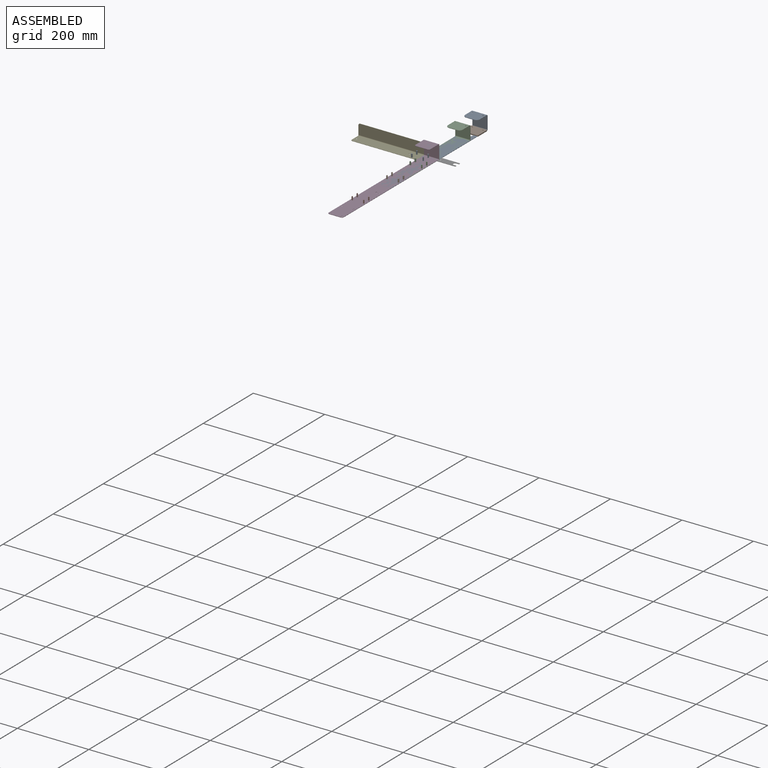
[diagram: assembled view]
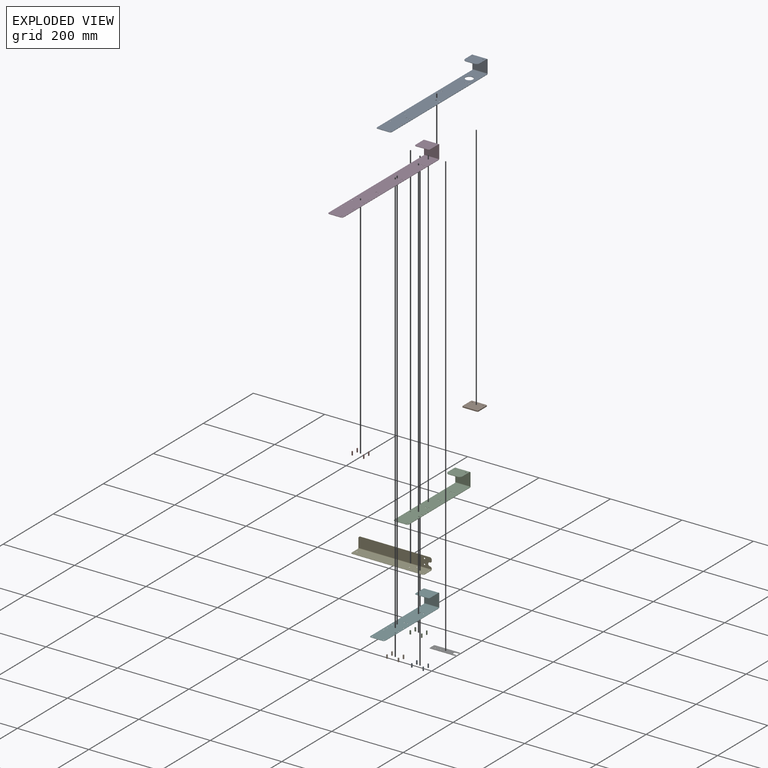
[diagram: exploded view]
GUIDED TOUR — FREECAD ASSEMBLY "pump_holder"

This assembly has 11 components, labeled P0..P10 below (a component is one placed body or linked part; the same part can appear more than once), held together by 0 modeled joints plus 27 derived contact edges. A joint is a constraint between two components; its type names the relative motion it leaves free:
  CONTACT — a derived adjacency edge — the two components touch in the source model (clearance under 2% of the assembly's diagonal); it is measured from the geometry, not a modeled constraint.
Axis/direction vectors are unit vectors and 'through' points are millimeter coordinates, both in the assembly's world frame.

MATES
  1. CONTACT "contact_0_1": P0 <-> P1, contact direction (0.000, 0.000, -1.000) through (-20.93, 190.30, 0.00) mm (derived from contact, not a modeled constraint)
  2. CONTACT "contact_0_2": P0 <-> P2, contact direction (0.000, 0.000, 1.000) through (18.25, 125.36, 1.38) mm (derived from contact, not a modeled constraint)
  3. CONTACT "contact_0_3": P0 <-> P3, contact direction (0.000, 0.000, -1.000) through (15.17, -141.60, 1.00) mm (derived from contact, not a modeled constraint)
  4. CONTACT "contact_0_4": P0 <-> P4, contact direction (0.000, 0.000, -1.000) through (2.25, 3.73, 1.64) mm (derived from contact, not a modeled constraint)
  5. CONTACT "contact_0_5": P0 <-> P5, contact direction (0.000, 0.000, -1.000) through (7.12, -107.50, 0.00) mm (derived from contact, not a modeled constraint)
  6. CONTACT "contact_0_6": P0 <-> P6, contact direction (0.000, 0.000, -1.000) through (3.75, 10.75, 0.00) mm (derived from contact, not a modeled constraint)
  7. CONTACT "contact_0_9": P0 <-> P9, contact direction (0.000, 0.000, -1.000) through (16.00, -139.25, 0.00) mm (derived from contact, not a modeled constraint)
  8. CONTACT "contact_2_3": P2 <-> P3, contact direction (0.000, 0.000, -1.000) through (15.64, -46.37, 1.00) mm (derived from contact, not a modeled constraint)
  9. CONTACT "contact_2_4": P2 <-> P4, contact direction (0.000, 0.000, -1.000) through (0.62, -26.50, 0.00) mm (derived from contact, not a modeled constraint)
  10. CONTACT "contact_2_5": P2 <-> P5, contact direction (0.000, 0.000, -1.000) through (12.00, -43.00, 0.00) mm (derived from contact, not a modeled constraint)
  11. CONTACT "contact_2_6": P2 <-> P6, contact direction (0.000, 0.000, -1.000) through (1.91, -15.98, 0.00) mm (derived from contact, not a modeled constraint)
  12. CONTACT "contact_2_8": P2 <-> P8, contact direction (0.000, 0.000, -1.000) through (-2.28, -26.29, 0.00) mm (derived from contact, not a modeled constraint)
  13. CONTACT "contact_2_9": P2 <-> P9, contact direction (0.000, -1.000, 0.000) through (16.00, -129.62, 0.00) mm (derived from contact, not a modeled constraint)
  14. CONTACT "contact_2_10": P2 <-> P10, contact direction (0.000, 0.000, -1.000) through (17.75, -63.00, 0.00) mm (derived from contact, not a modeled constraint)
  15. CONTACT "contact_3_4": P3 <-> P4, contact direction (0.000, 1.000, 0.000) through (-20.61, 0.00, 5.13) mm (derived from contact, not a modeled constraint)
  16. CONTACT "contact_3_5": P3 <-> P5, contact direction (0.000, 0.000, 1.000) through (21.00, -35.00, 40.00) mm (derived from contact, not a modeled constraint)
  17. CONTACT "contact_3_6": P3 <-> P6, contact direction (0.000, 0.000, -1.000) through (22.13, -0.30, 0.76) mm (derived from contact, not a modeled constraint)
  18. CONTACT "contact_3_7": P3 <-> P7, contact direction (0.000, 0.000, -1.000) through (-14.25, -275.00, 0.00) mm (derived from contact, not a modeled constraint)
  19. CONTACT "contact_3_9": P3 <-> P9, contact direction (0.000, 0.000, -1.000) through (15.54, -137.85, 0.00) mm (derived from contact, not a modeled constraint)
  20. CONTACT "contact_3_10": P3 <-> P10, contact direction (0.000, 0.000, -1.000) through (15.64, -46.37, 0.00) mm (derived from contact, not a modeled constraint)
  21. CONTACT "contact_4_5": P4 <-> P5, contact direction (0.000, -1.000, 0.000) through (-20.61, 0.00, 5.48) mm (derived from contact, not a modeled constraint)
  22. CONTACT "contact_4_6": P4 <-> P6, contact direction (0.000, 0.000, -1.000) through (0.00, -0.26, 0.91) mm (derived from contact, not a modeled constraint)
  23. CONTACT "contact_4_8": P4 <-> P8, contact direction (0.000, 0.000, -1.000) through (-38.31, -28.16, 0.00) mm (derived from contact, not a modeled constraint)
  24. CONTACT "contact_5_6": P5 <-> P6, contact direction (0.000, 0.000, -1.000) through (22.13, -0.43, 0.82) mm (derived from contact, not a modeled constraint)
  25. CONTACT "contact_5_9": P5 <-> P9, contact direction (0.000, 0.000, -1.000) through (-14.25, -136.00, 0.00) mm (derived from contact, not a modeled constraint)
  26. CONTACT "contact_5_10": P5 <-> P10, contact direction (0.000, 0.000, -1.000) through (12.00, -43.00, 0.00) mm (derived from contact, not a modeled constraint)
  27. CONTACT "contact_6_8": P6 <-> P8, contact direction (0.000, 0.000, 1.000) through (-1.62, -7.00, 0.00) mm (derived from contact, not a modeled constraint)

ASSEMBLY ORDER
  1. P3 — the base component [order heuristic]
  2. P9 [order verified]
  3. P0 [order verified]
  4. P5 — core [order heuristic]
  5. P4 [order verified]
  6. P10 [order verified]
  7. P2 [order verified]
  8. P8 [order verified]
  9. P7 [order verified]
  10. P1 [order verified]
  11. P6 [order verified]
Order-tag legend:
  [order verified] — this step's position reverses a verified removal order: the component was checked to insert without passing through the ones already placed.
  [order heuristic] — the first 2 components form the assembly's core: parts whose collision-free extraction could not be verified, listed in mate-graph order.

Of the 11 components, 7 carry a construction recipe — the FreeCAD feature program (sketches with constraints, then the solid features that consume them) that regenerates the part from scratch, quoted from this document or from the linked companion document it references; the rest are supplied as boundary geometry only. The tour below walks the components in assembly order: each is shown spotlighted twice — in the assembled view, then in the exploded view, where a leader line traces a displaced component back to its assembled socket (components that stay in place when exploded have no leader line; saturated green if recipe-attached, orange if geometry-only; every other component desaturated gray) — followed by its recipe or geometry summary and the mates that hold it.
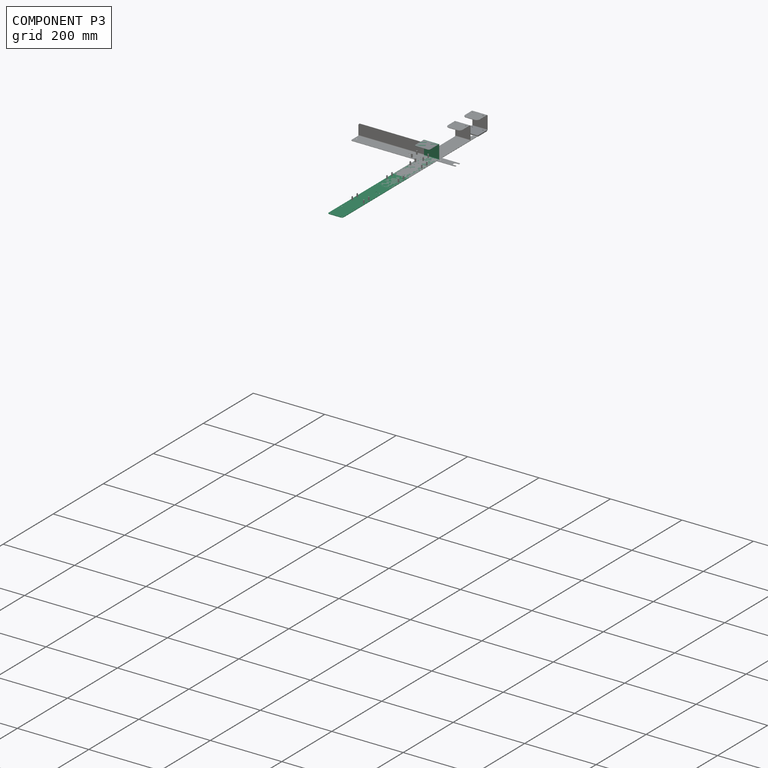
[diagram: component P3 — assembled]
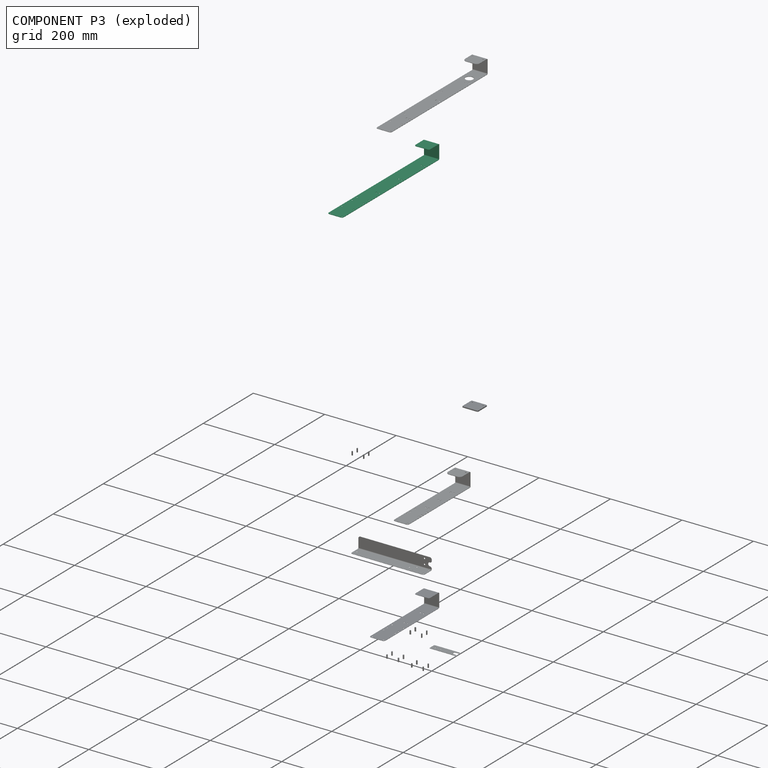
[diagram: component P3 — exploded]
COMPONENT P3 — recipe-attached ("Body", modeled in this document).
Held by: resting contact with P0 (derived edge); resting contact with P2 (derived edge); resting contact with P4 (derived edge); resting contact with P5 (derived edge); resting contact with P6 (derived edge); resting contact with P7 (derived edge); resting contact with P9 (derived edge); resting contact with P10 (derived edge).
Construction recipe (the document's own serialized feature program — sketch geometry with constraints, then the solid features built on it; lengths are millimeters unless a unit is written):

FEATURE [PartDesign::SubShapeBinder] Binder005
  BindCopyOnChange = 0
  BindMode = 0
  ClaimChildren = true
  Context = -> Body004 [Binder005.]
  Fuse = false
  MakeFace = true
  OffsetFill = false
  OffsetIntersection = false
  OffsetJoinType = 0
  OffsetOpenResult = false
  PartialLoad = false
  Placement = pos=(0,0,0) rot=(0,-1,0;1.5708rad)
  Relative = true
  Support = -> [Sketch016]
  _Version = 2
FEATURE [PartDesign::FeaturePython] BaseBend002  # WARN: FeaturePython — macro-defined, semantics opaque (R4)
  BendSide = 1
  BendSketch = -> Binder005
  MidPlane = true
  Reverse = false
  Suppressed = false
  length = 42
  radius = 1
  thickness = 1
FEATURE [PartDesign::Boolean] Boolean
  BaseFeature = -> BaseBend002
  Group = -> [Compound003]
  Suppressed = false
  Type = 1
  UsePlacement = true
FEATURE [PartDesign::Body] Body004  label="Body"
  Group = -> [Binder005,BaseBend002,Boolean]
  Origin = -> Origin004
  Tip = -> Boolean
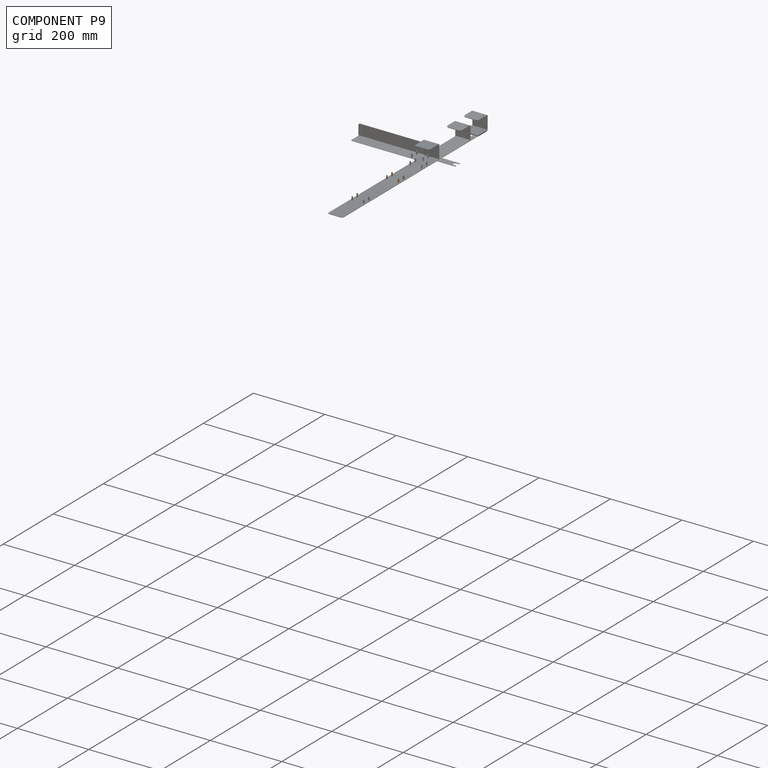
[diagram: component P9 — assembled]
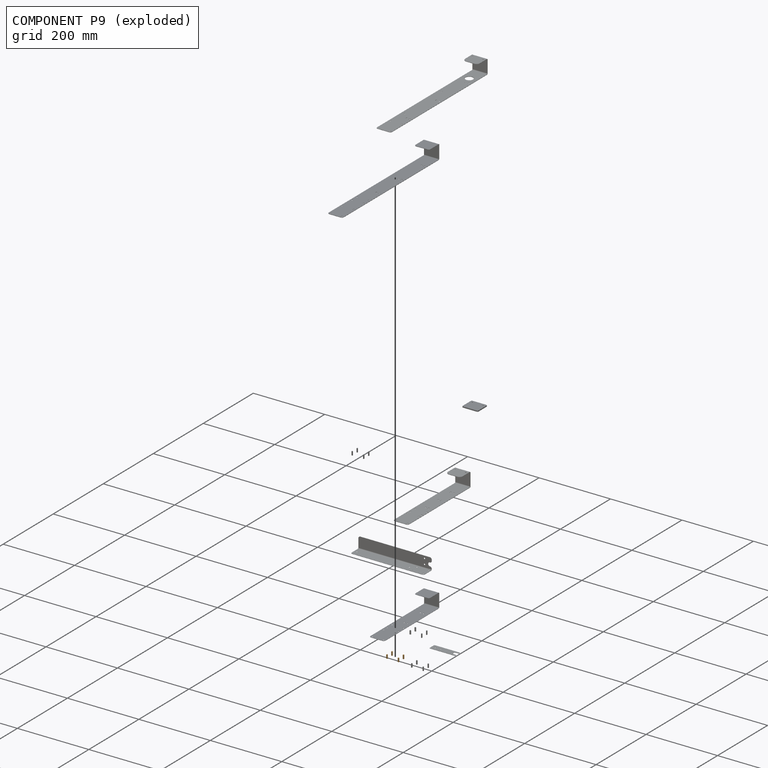
[diagram: component P9 — exploded]
COMPONENT P9 — geometry summary ("Populate Populate LinearArray003 with LinearArray001 with hole_3.5_mm003"; no construction recipe available for this part):
  bounding box: 35.5 x 23.5 x 10.0 mm
  tessellated surface: 816 triangles
  volume: 385 mm^3 (5% of its bounding box)
  symmetry: 2-fold rotationally symmetric about the x axis
Held by: resting contact with P0 (derived edge); resting contact with P2 (derived edge); resting contact with P3 (derived edge); resting contact with P5 (derived edge).
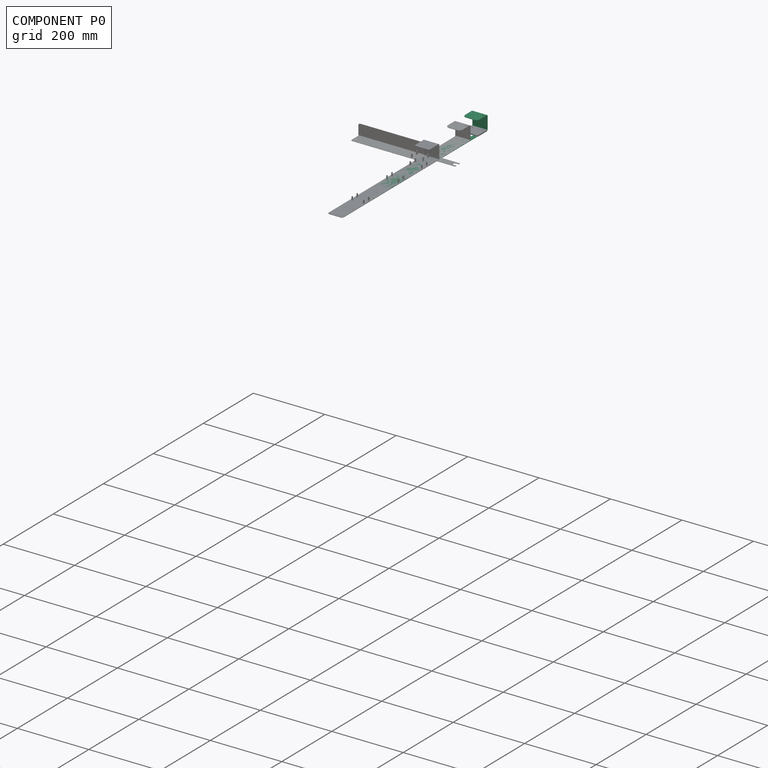
[diagram: component P0 — assembled]
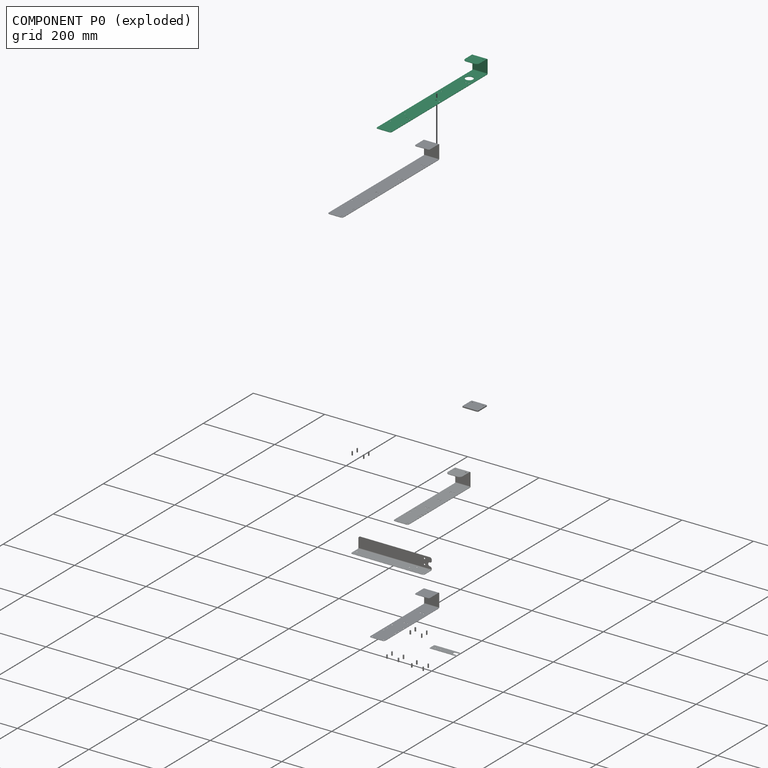
[diagram: component P0 — exploded]
COMPONENT P0 — recipe-attached ("pump_holder_full_size_material_0.45ansi", modeled in this document).
Held by: resting contact with P1 (derived edge); resting contact with P2 (derived edge); resting contact with P3 (derived edge); resting contact with P4 (derived edge); resting contact with P5 (derived edge); resting contact with P6 (derived edge); resting contact with P9 (derived edge).
Construction recipe (the document's own serialized feature program — sketch geometry with constraints, then the solid features built on it; lengths are millimeters unless a unit is written):

FEATURE [Sketcher::SketchObject] Sketch
  AttachmentSupport = -> [YZ_Plane]
  FullyConstrained = true
  MapMode = 5
  Placement = pos=(0,0,0) rot=(0.57735,0.57735,0.57735;2.0944rad)
  sketch-geometry (3):
    g0: LineSegment StartX=-193.5 StartY=0 StartZ=0 EndX=193.5 EndY=0 EndZ=0
    g1: LineSegment StartX=193.5 StartY=0 StartZ=0 EndX=193.5 EndY=40 EndZ=0
    g2: LineSegment StartX=193.5 StartY=40 StartZ=0 EndX=153.5 EndY=40 EndZ=0
  constraints (9):
    c: PointOnObject(g0,g-1)
    c: Coincident(g1,g0)
    c: Vertical(g1)
    c: Coincident(g2,g1)
    c: Horizontal(g2)
    c: DistanceY(g1,g1) = 40
    c: DistanceX(g2,g2) = 40
    c: Symmetric(g0,g0,g-2)
    c: DistanceX(g0,g0) = 387  'length'
FEATURE [PartDesign::FeaturePython] BaseBend  # WARN: FeaturePython — macro-defined, semantics opaque (R4)
  BendSide = 1
  BendSketch = -> Sketch
  MidPlane = true
  Reverse = false
  Suppressed = false
  length = 42
  radius = 2
  thickness = 1
FEATURE [Sketcher::SketchObject] Sketch002
  AttachmentOffset = pos=(0,-105.5,0) rot=(0,0,1;0rad)
  AttachmentSupport = -> [XY_Plane]
  FullyConstrained = true
  MapMode = 5
  Placement = pos=(0,-105.5,0) rot=(0,0,1;0rad)
  expr: AttachmentOffset = Binder.Placement
  sketch-geometry (1):
    g0: Circle CenterX=0 CenterY=0 CenterZ=0 NormalX=0 NormalY=0 NormalZ=1 AngleXU=0 Radius=5
  constraints (2):
    c: Coincident(g0,g-1)
    c: Diameter(g0) = 10
FEATURE [PartDesign::SubShapeBinder] Binder
  BindCopyOnChange = 0
  BindMode = 0
  ClaimChildren = true
  Context = -> Body [Binder.]
  Fuse = false
  MakeFace = true
  OffsetFill = false
  OffsetIntersection = false
  OffsetJoinType = 0
  OffsetOpenResult = false
  PartialLoad = false
  Placement = pos=(0,-105.5,0) rot=(0,0,1;0rad)
  Relative = false
  Support = -> [Compound]
  _Version = 2
  expr: .Placement.Base.y = Local_CS.Placement.Base.y + Sketch003.Constraints.length + 70 mm
FEATURE [Sketcher::SketchObject] Sketch004
  AttachmentOffset = pos=(10,75,0) rot=(0,0,1;0rad)
  AttachmentSupport = -> [Binder]
  FullyConstrained = true
  MapMode = 5
  Placement = pos=(10,-30.5,0) rot=(0,0,1;0rad)
  expr: .AttachmentOffset.Base.y = 75 mm
  sketch-geometry (2):
    g0: Circle CenterX=5 CenterY=0 CenterZ=0 NormalX=0 NormalY=0 NormalZ=1 AngleXU=0 Radius=2
    g1: Circle CenterX=-5 CenterY=0 CenterZ=0 NormalX=0 NormalY=0 NormalZ=1 AngleXU=0 Radius=2
  constraints (5):
    c: PointOnObject(g0,g-1)
    c: Equal(g1,g0)
    c: Diameter(g1) = 4
    c: Symmetric(g1,g0,g-2)
    c: DistanceX(g1,g0) = 10
FEATURE [Sketcher::SketchObject] Sketch005
  AttachmentOffset = pos=(0,183.5,2) rot=(0,0,1;0rad)
  AttachmentSupport = -> [XY_Plane]
  FullyConstrained = true
  MapMode = 5
  Placement = pos=(0,183.5,2) rot=(0,0,1;0rad)
  expr: .AttachmentOffset.Base.y = Sketch.Constraints.length / 2 - 10 mm
  expr: .AttachmentOffset.Base.z = BaseBend.thickness + 1 mm
  sketch-geometry (2):
    g0: Circle CenterX=15 CenterY=0 CenterZ=0 NormalX=0 NormalY=0 NormalZ=1 AngleXU=0 Radius=1.65
    g1: Circle CenterX=-15 CenterY=0 CenterZ=0 NormalX=0 NormalY=0 NormalZ=1 AngleXU=0 Radius=1.65
  constraints (5):
    c: PointOnObject(g0,g-1)
    c: Equal(g1,g0)
    c: Diameter(g1) = 3.3
    c: Symmetric(g0,g1,g-2)
    c: DistanceX(g1,g0) = 30
FEATURE [PartDesign::Fillet] Fillet
  Base = -> BaseBend [Edge8,Edge10]
  BaseFeature = -> BaseBend
  Radius = 10
  SupportTransform = false
  Suppressed = false
  UseAllEdges = false
FEATURE [PartDesign::Fillet] Fillet001
  Base = -> Fillet [Edge48,Edge47]
  BaseFeature = -> Fillet
  Radius = 5
  SupportTransform = false
  Suppressed = false
  UseAllEdges = false
FEATURE [Sketcher::SketchObject] Sketch014
  AttachmentOffset = pos=(0,150,0) rot=(0,0,1;0rad)
  AttachmentSupport = -> [XY_Plane]
  FullyConstrained = true
  MapMode = 5
  Placement = pos=(0,150,0) rot=(0,0,1;0rad)
  sketch-geometry (1):
    g0: Circle CenterX=0 CenterY=0 CenterZ=0 NormalX=0 NormalY=0 NormalZ=1 AngleXU=0 Radius=10.5
  constraints (2):
    c: Coincident(g0,g-1)
    c: Diameter(g0) = 21
FEATURE [PartDesign::CoordinateSystem] Local_CS002
  AttacherType = Attacher::AttachEngine3D
  AttachmentOffset = pos=(0,-193.5,0) rot=(0,0,1;0rad)
  AttachmentSupport = -> [XY_Plane]
  MapMode = 5
  Placement = pos=(0,-193.5,0) rot=(0,0,1;0rad)
  expr: .AttachmentOffset.Base.y = -Sketch.Constraints.length / 2
FEATURE [Sketcher::SketchObject] Sketch001
  AttachmentOffset = pos=(0,28,0) rot=(0,0,1;0rad)
  AttachmentSupport = -> [Local_CS002]
  FullyConstrained = true
  MapMode = 5
  Placement = pos=(0,-165.5,0) rot=(0,0,1;0rad)
  expr: .AttachmentOffset.Base.y = .Constraints.y_distance / 2 + 5 mm
  sketch-geometry (9):
    g0: LineSegment StartX=-16 StartY=-23 StartZ=0 EndX=-16 EndY=23 EndZ=0
    g1: LineSegment StartX=-16 StartY=23 StartZ=0 EndX=16 EndY=23 EndZ=0
    g2: LineSegment StartX=16 StartY=23 StartZ=0 EndX=16 EndY=-23 EndZ=0
    g3: LineSegment StartX=16 StartY=-23 StartZ=0 EndX=-16 EndY=-23 EndZ=0
    g4: GeomPoint X=0 Y=0 Z=0
    g5: Circle CenterX=-16 CenterY=23 CenterZ=0 NormalX=0 NormalY=0 NormalZ=1 AngleXU=0 Radius=1.75
    g6: Circle CenterX=16 CenterY=23 CenterZ=0 NormalX=0 NormalY=0 NormalZ=1 AngleXU=0 Radius=1.75
    g7: Circle CenterX=16 CenterY=-23 CenterZ=0 NormalX=0 NormalY=0 NormalZ=1 AngleXU=0 Radius=1.75
    g8: Circle CenterX=-16 CenterY=-23 CenterZ=0 NormalX=0 NormalY=0 NormalZ=1 AngleXU=0 Radius=1.75
  constraints (20):
    c: Coincident(g0,g1)
    c: Coincident(g1,g2)
    c: Coincident(g2,g3)
    c: Coincident(g3,g0)
    c: Horizontal(g1)
    c: Horizontal(g3)
    c: Vertical(g0)
    c: Vertical(g2)
    c: Symmetric(g1,g0,g4)
    c: Coincident(g4,g-1)
    c: DistanceY(g2,g2) = 46  'y_distance'
    c: DistanceX(g1,g1) = 32  'x_distance'
    c: Coincident(g5,g0)
    c: Coincident(g6,g1)
    c: Coincident(g7,g2)
    c: Coincident(g8,g0)
    c: Equal(g7,g8)
    c: Equal(g7,g5)
    c: Equal(g7,g6)
    c: Diameter(g7) = 3.5
FEATURE [PartDesign::Hole] Hole
  BaseFeature = -> Fillet001
  CustomThreadClearance = 0
  Depth = 756.527
  DepthType = 1
  Diameter = 3.5
  DrillForDepth = false
  DrillPoint = 1
  DrillPointAngle = 118
  HoleCutCountersinkAngle = 90
  HoleCutCustomValues = false
  HoleCutDepth = 0
  HoleCutDiameter = 6.1
  HoleCutType = 0
  ModelThread = false
  Profile = -> Sketch001
  Reversed = true
  Suppressed = false
  Tapered = false
  TaperedAngle = 90
  ThreadClass = 0
  ThreadDepth = 756.527
  ThreadDepthType = 0
  ThreadDirection = 0
  ThreadFit = 0
  ThreadSize = 0
  ThreadType = 0
  Threaded = false
  UseCustomThreadClearance = false
  expr: Diameter = 3.5
FEATURE [PartDesign::CoordinateSystem] Local_CS
  AttacherType = Attacher::AttachEngine3D
  AttachmentOffset = pos=(-12,0,0) rot=(0,0,1;0rad)
  AttachmentSupport = -> [Local_CS002]
  MapMode = 5
  Placement = pos=(-12,-193.5,0) rot=(0,0,1;0rad)
FEATURE [PartDesign::Hole] Hole003
  BaseFeature = -> Hole
  CustomThreadClearance = 0
  Depth = 1070.26
  DepthType = 1
  Diameter = 3.3
  DrillForDepth = false
  DrillPoint = 1
  DrillPointAngle = 118
  HoleCutCountersinkAngle = 90
  HoleCutCustomValues = false
  HoleCutDepth = 0
  HoleCutDiameter = 6.1
  HoleCutType = 0
  ModelThread = false
  Profile = -> Sketch005
  Reversed = true
  Suppressed = false
  Tapered = false
  TaperedAngle = 90
  ThreadClass = 0
  ThreadDepth = 1070.26
  ThreadDepthType = 0
  ThreadDirection = 0
  ThreadFit = 0
  ThreadSize = 0
  ThreadType = 0
  Threaded = false
  UseCustomThreadClearance = false
  expr: Diameter = 3.3
FEATURE [Sketcher::SketchObject] Sketch013
  AttachmentOffset = pos=(0,102.5,0) rot=(0,0,1;0rad)
  AttachmentSupport = -> [Local_CS]
  FullyConstrained = true
  MapMode = 5
  Placement = pos=(-12,-91,0) rot=(0,0,1;0rad)
  sketch-geometry (2):
    g0: Circle CenterX=0 CenterY=0 CenterZ=0 NormalX=0 NormalY=0 NormalZ=1 AngleXU=0 Radius=1.65
    g1: Circle CenterX=0 CenterY=147 CenterZ=0 NormalX=0 NormalY=0 NormalZ=1 AngleXU=0 Radius=1.65
  constraints (5):
    c: Coincident(g0,g-1)
    c: PointOnObject(g1,g-2)
    c: DistanceY(g1) = 147
    c: Equal(g0,g1)
    c: Diameter(g0) = 3.3
FEATURE [PartDesign::Pocket] Pocket001
  BaseFeature = -> Hole003
  Direction = (0,0,-1)
  Length = 5
  Length2 = 5
  Midplane = true
  Profile = -> Sketch013
  ReferenceAxis = -> Sketch013 [N_Axis]
  Suppressed = false
  Type = 1
FEATURE [PartDesign::Pocket] Pocket002
  BaseFeature = -> Pocket001
  Direction = (0,0,-1)
  Length = 5
  Length2 = 5
  Profile = -> Sketch014
  ReferenceAxis = -> Sketch014 [N_Axis]
  Reversed = true
  Suppressed = false
  Type = 0
FEATURE [PartDesign::SubShapeBinder] Binder004
  BindCopyOnChange = 0
  BindMode = 0
  ClaimChildren = false
  Context = -> Body [Binder004.]
  Fuse = false
  MakeFace = true
  OffsetFill = false
  OffsetIntersection = false
  OffsetJoinType = 0
  OffsetOpenResult = false
  PartialLoad = false
  Relative = true
  Support = -> [Populate]
  _Version = 2
FEATURE [PartDesign::Pocket] Pocket003
  BaseFeature = -> Pocket002
  Direction = (0,0,-1)
  Length = 5
  Length2 = 5
  Profile = -> Binder004
  Reversed = true
  Suppressed = false
  Type = 0
FEATURE [PartDesign::Body] Body  label="pump_holder_full_size_material_0.45ansi"
  Group = -> [Sketch,BaseBend,Sketch001,Fillet,Fillet001,Hole,Sketch002,Binder,Sketch004,Local_CS,Sketch005,Hole003,Sketch013,Pocket001,Sketch014,Pocket002,Local_CS002,Binder004,Pocket003]
  Origin = -> Origin
  Tip = -> Pocket003
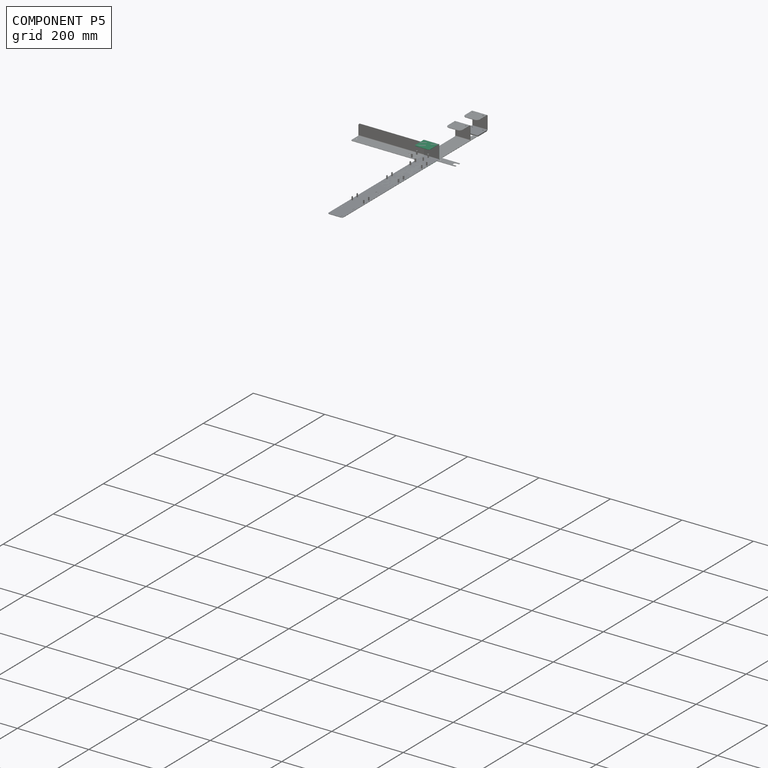
[diagram: component P5 — assembled]
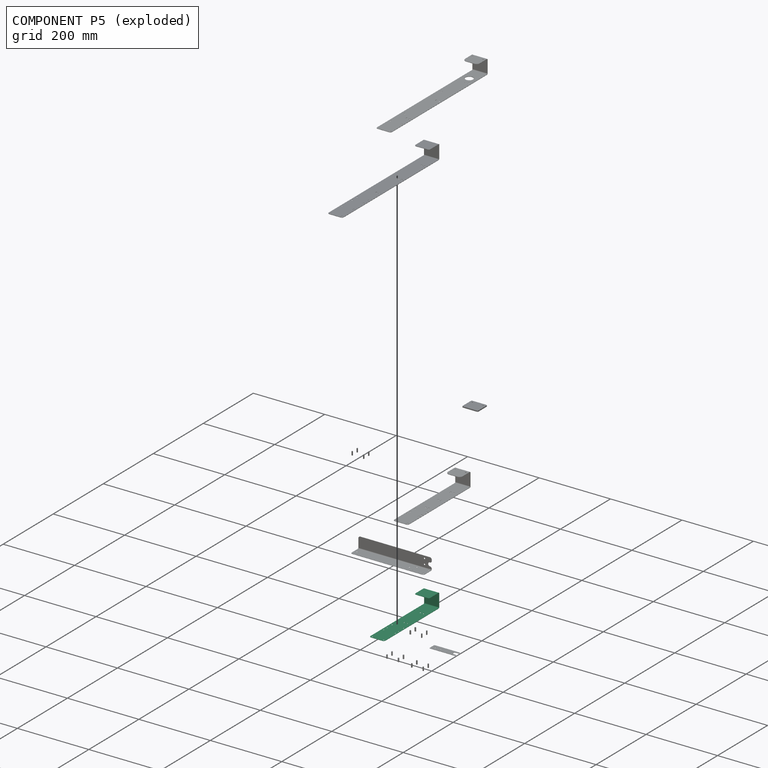
[diagram: component P5 — exploded]
COMPONENT P5 — recipe-attached ("Body006", modeled in this document).
Held by: resting contact with P0 (derived edge); resting contact with P2 (derived edge); resting contact with P3 (derived edge); resting contact with P4 (derived edge); resting contact with P6 (derived edge); resting contact with P9 (derived edge); resting contact with P10 (derived edge).
Construction recipe (the document's own serialized feature program — sketch geometry with constraints, then the solid features built on it; lengths are millimeters unless a unit is written):

FEATURE [PartDesign::SubShapeBinder] Binder007
  BindCopyOnChange = 0
  BindMode = 0
  ClaimChildren = true
  Context = -> Body006 [Binder007.]
  Fuse = false
  MakeFace = true
  OffsetFill = false
  OffsetIntersection = false
  OffsetJoinType = 0
  OffsetOpenResult = false
  PartialLoad = false
  Placement = pos=(0,0,0) rot=(0,-1,0;1.5708rad)
  Relative = false
  Support = -> [Sketch021]
  _Version = 2
FEATURE [PartDesign::FeaturePython] BaseBend004  # WARN: FeaturePython — macro-defined, semantics opaque (R4)
  BendSide = 1
  BendSketch = -> Binder007
  MidPlane = true
  Reverse = false
  Suppressed = false
  length = 42
  radius = 2
  thickness = 0.7
FEATURE [PartDesign::Boolean] Boolean002
  BaseFeature = -> BaseBend004
  Group = -> [Compound005]
  Suppressed = false
  Type = 1
  UsePlacement = true
FEATURE [PartDesign::Body] Body006
  Group = -> [Binder007,BaseBend004,Boolean002]
  Origin = -> Origin006
  Tip = -> Boolean002
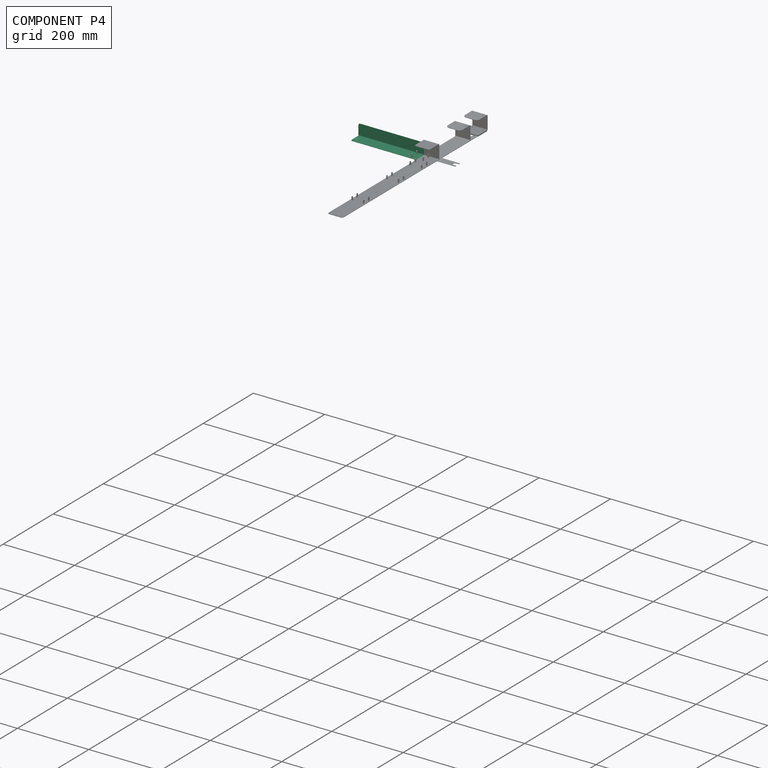
[diagram: component P4 — assembled]
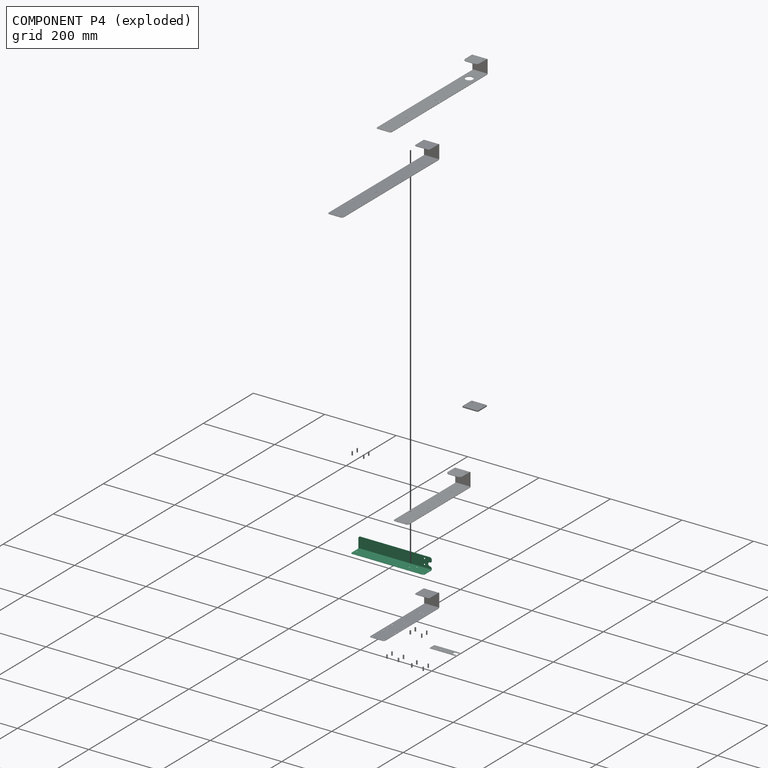
[diagram: component P4 — exploded]
COMPONENT P4 — recipe-attached ("Body005", modeled in this document).
Held by: resting contact with P0 (derived edge); resting contact with P2 (derived edge); resting contact with P3 (derived edge); resting contact with P5 (derived edge); resting contact with P6 (derived edge); resting contact with P8 (derived edge).
Construction recipe (the document's own serialized feature program — sketch geometry with constraints, then the solid features built on it; lengths are millimeters unless a unit is written):

FEATURE [PartDesign::SubShapeBinder] Binder006
  BindCopyOnChange = 0
  BindMode = 0
  ClaimChildren = true
  Context = -> Body005 [Binder006.]
  Fuse = false
  MakeFace = true
  OffsetFill = false
  OffsetIntersection = false
  OffsetJoinType = 0
  OffsetOpenResult = false
  PartialLoad = false
  Placement = pos=(0,0,0) rot=(0,-1,0;1.5708rad)
  Relative = false
  Support = -> [Sketch018]
  _Version = 2
FEATURE [PartDesign::FeaturePython] BaseBend003  # WARN: FeaturePython — macro-defined, semantics opaque (R4)
  BendSide = 0
  BendSketch = -> Binder006
  MidPlane = false
  Reverse = false
  Suppressed = false
  length = 205
  radius = 2
  thickness = 0.7
FEATURE [Sketcher::SketchObject] Sketch019
  AttachmentSupport = -> [XZ_Plane005]
  FullyConstrained = true
  MapMode = 5
  Placement = pos=(0,0,0) rot=(1,0,0;1.5708rad)
  sketch-geometry (5):
    g0: ArcOfCircle CenterX=-4.99997 CenterY=4 CenterZ=0 NormalX=0 NormalY=0 NormalZ=1 AngleXU=0 Radius=4.99997 StartAngle=0 EndAngle=1.5708
    g1: ArcOfCircle CenterX=-5 CenterY=14 CenterZ=0 NormalX=0 NormalY=0 NormalZ=1 AngleXU=0 Radius=5 StartAngle=1.45946 EndAngle=4.71239
    g2: ArcOfCircle CenterX=-4 CenterY=22.9442 CenterZ=0 NormalX=0 NormalY=0 NormalZ=1 AngleXU=0 Radius=4 StartAngle=4.60105 EndAngle=6.28319
    g3: LineSegment StartX=0 StartY=4 StartZ=0 EndX=0 EndY=22.9442 EndZ=0
    g4: LineSegment StartX=-4.99999 StartY=8.99997 StartZ=0 EndX=0 EndY=8.99997 EndZ=0
  constraints (14):
    c: PointOnObject(g2,g-2)
    c: Tangent(g3,g0) = -1.5708
    c: Vertical(g3)
    c: Tangent(g3,g2) = -1.5708
    c: Tangent(g1,g0) = 1.5708
    c: Tangent(g2,g1) = 1.5708
    c: Radius(g2) = 4
    c: Tangent(g1,g3)
    c: Diameter(g1) = 10
    c: Coincident(g4,g0)
    c: PointOnObject(g4,g3)
    c: Horizontal(g4)
    c: Tangent(g4,g1)
    c: DistanceY(g0) = 4
FEATURE [Sketcher::SketchObject] Sketch022
  AttachmentSupport = -> [XZ_Plane005]
  ExternalGeometry = -> [Binder006]
  FullyConstrained = true
  MapMode = 5
  Placement = pos=(0,0,0) rot=(1,0,0;1.5708rad)
  sketch-geometry (7):
    g0: LineSegment StartX=-50 StartY=32 StartZ=0 EndX=-10 EndY=32 EndZ=0
    g1: ArcOfCircle CenterX=-50 CenterY=42 CenterZ=0 NormalX=0 NormalY=0 NormalZ=1 AngleXU=0 Radius=10 StartAngle=4.71239 EndAngle=6.28319
    g2: ArcOfCircle CenterX=-10 CenterY=42 CenterZ=0 NormalX=0 NormalY=0 NormalZ=1 AngleXU=0 Radius=10 StartAngle=3.14159 EndAngle=4.71239
    g3: Circle CenterX=-30 CenterY=42 CenterZ=0 NormalX=0 NormalY=0 NormalZ=1 AngleXU=0 Radius=5
    g4: ArcOfCircle CenterX=-30 CenterY=42 CenterZ=0 NormalX=0 NormalY=0 NormalZ=1 AngleXU=0 Radius=10 StartAngle=2.84e-14 EndAngle=3.14159
    g5: LineSegment StartX=-50 StartY=32 StartZ=0 EndX=-30 EndY=42 EndZ=0
    g6: LineSegment StartX=-30 StartY=42 StartZ=0 EndX=-10 EndY=32 EndZ=0
  constraints (18):
    c: Horizontal(g0)
    c: Coincident(g1,g0)
    c: Coincident(g4,g3)
    c: Horizontal(g0,g-3)
    c: DistanceX(g0) = -10
    c: Tangent(g4,g2) = 1.5708
    c: Tangent(g4,g1) = 1.5708
    c: Equal(g2,g1)
    c: Equal(g2,g4)
    c: Coincident(g0,g5)
    c: Coincident(g5,g3)
    c: Coincident(g5,g6)
    c: Coincident(g6,g0)
    c: Equal(g5,g6)
    c: Diameter(g3) = 10
    c: Distance(g3,g4) = 5
    c: DistanceY(g0,g3) = 10
    c: Tangent(g2,g0) = -1.5708
FEATURE [PartDesign::Boolean] Boolean001
  BaseFeature = -> BaseBend003
  Group = -> [Compound004]
  Suppressed = false
  Type = 1
  UsePlacement = true
FEATURE [PartDesign::Pocket] Pocket004
  BaseFeature = -> Boolean001
  Direction = (0,1,-2e-16)
  Length = 5
  Length2 = 5
  Midplane = true
  Profile = -> Sketch019
  ReferenceAxis = -> Sketch019 [N_Axis]
  Suppressed = false
  Type = 0
FEATURE [PartDesign::Body] Body005
  Group = -> [Binder006,BaseBend003,Boolean001,Sketch019,Pocket004,Sketch022]
  Origin = -> Origin005
  Tip = -> Pocket004
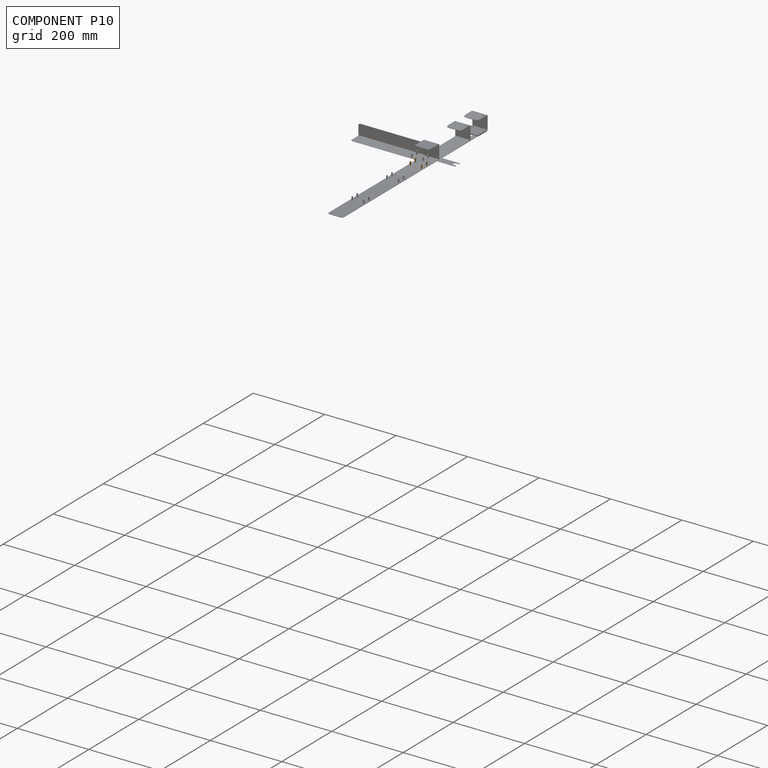
[diagram: component P10 — assembled]
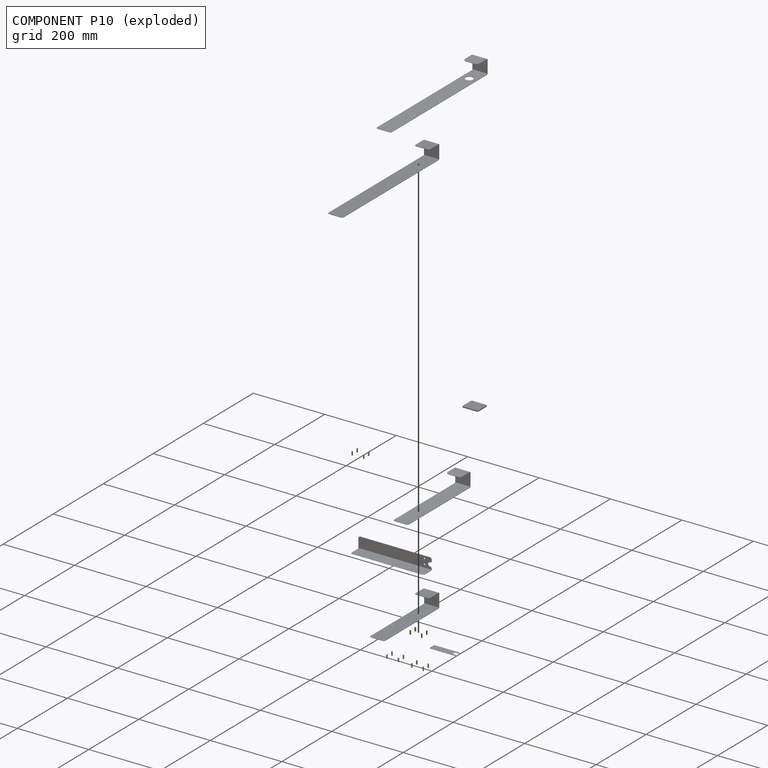
[diagram: component P10 — exploded]
COMPONENT P10 — geometry summary ("Populate Populate LinearArray003 with LinearArray001 with hole_3.5_mm004"; no construction recipe available for this part):
  bounding box: 35.5 x 23.5 x 10.0 mm
  tessellated surface: 816 triangles
  volume: 385 mm^3 (5% of its bounding box)
  symmetry: 2-fold rotationally symmetric about the x axis
Held by: resting contact with P2 (derived edge); resting contact with P3 (derived edge); resting contact with P5 (derived edge).
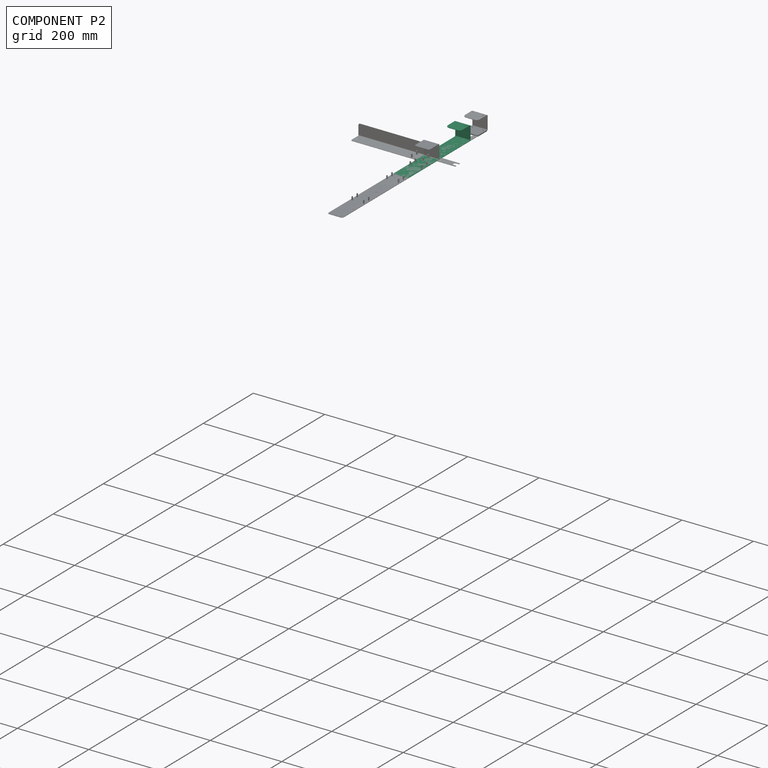
[diagram: component P2 — assembled]
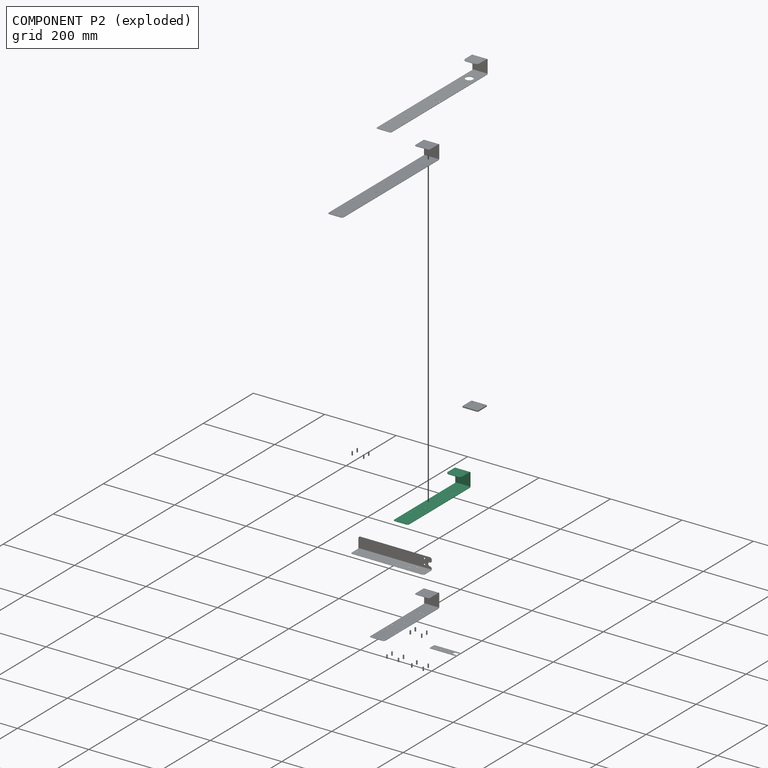
[diagram: component P2 — exploded]
COMPONENT P2 — recipe-attached ("pump_holder_wall_material_0.45ansi", modeled in this document).
Held by: resting contact with P0 (derived edge); resting contact with P3 (derived edge); resting contact with P4 (derived edge); resting contact with P5 (derived edge); resting contact with P6 (derived edge); resting contact with P8 (derived edge); resting contact with P9 (derived edge); resting contact with P10 (derived edge).
Construction recipe (the document's own serialized feature program — sketch geometry with constraints, then the solid features built on it; lengths are millimeters unless a unit is written):

FEATURE [PartDesign::SubShapeBinder] Binder003
  BindCopyOnChange = 0
  BindMode = 0
  ClaimChildren = true
  Context = -> Body003 [Binder003.]
  Fuse = false
  MakeFace = true
  OffsetFill = false
  OffsetIntersection = false
  OffsetJoinType = 0
  OffsetOpenResult = false
  PartialLoad = false
  Placement = pos=(0,-37,0) rot=(0,0,1;0rad)
  Relative = false
  Support = -> [Compound001]
  _Version = 2
  expr: .Placement.Base.y = Local_CS001.Placement.Base.y + Sketch010.Constraints.length + 70 mm
FEATURE [PartDesign::CoordinateSystem] Local_CS001
  AttacherType = Attacher::AttachEngine3D
  AttachmentOffset = pos=(0,-125,0) rot=(0,0,1;0rad)
  AttachmentSupport = -> [XY_Plane003]
  MapMode = 5
  Placement = pos=(0,-125,0) rot=(0,0,1;0rad)
  expr: .AttachmentOffset.Base.y = -Sketch007.Constraints.length / 2
FEATURE [Sketcher::SketchObject] Sketch007
  AttachmentSupport = -> [YZ_Plane003]
  FullyConstrained = true
  MapMode = 5
  Placement = pos=(0,0,0) rot=(0.57735,0.57735,0.57735;2.0944rad)
  sketch-geometry (3):
    g0: LineSegment StartX=-125 StartY=0 StartZ=0 EndX=125 EndY=0 EndZ=0
    g1: LineSegment StartX=125 StartY=0 StartZ=0 EndX=125 EndY=40 EndZ=0
    g2: LineSegment StartX=125 StartY=40 StartZ=0 EndX=85 EndY=40 EndZ=0
  constraints (9):
    c: PointOnObject(g0,g-1)
    c: Coincident(g1,g0)
    c: Vertical(g1)
    c: Coincident(g2,g1)
    c: Horizontal(g2)
    c: DistanceY(g1,g1) = 40
    c: DistanceX(g2,g2) = 40
    c: Symmetric(g0,g0,g-2)
    c: DistanceX(g0,g0) = 250  'length'
FEATURE [PartDesign::FeaturePython] BaseBend001  # WARN: FeaturePython — macro-defined, semantics opaque (R4)
  BendSide = 1
  BendSketch = -> Sketch007
  MidPlane = true
  Reverse = false
  Suppressed = false
  length = 42
  radius = 2
  thickness = 1
FEATURE [PartDesign::Fillet] Fillet002
  Base = -> BaseBend001 [Edge8,Edge10]
  BaseFeature = -> BaseBend001
  Radius = 10
  SupportTransform = false
  Suppressed = false
  UseAllEdges = false
FEATURE [PartDesign::Fillet] Fillet003
  Base = -> Fillet002 [Edge48,Edge47]
  BaseFeature = -> Fillet002
  Radius = 5
  SupportTransform = false
  Suppressed = false
  UseAllEdges = false
FEATURE [Sketcher::SketchObject] Sketch008
  AttachmentOffset = pos=(0,28,0) rot=(0,0,1;0rad)
  AttachmentSupport = -> [Local_CS001]
  FullyConstrained = true
  MapMode = 5
  Placement = pos=(0,-97,0) rot=(0,0,1;0rad)
  expr: .AttachmentOffset.Base.y = .Constraints.y_distance / 2 + 5 mm
  sketch-geometry (9):
    g0: LineSegment StartX=-16 StartY=-23 StartZ=0 EndX=-16 EndY=23 EndZ=0
    g1: LineSegment StartX=-16 StartY=23 StartZ=0 EndX=16 EndY=23 EndZ=0
    g2: LineSegment StartX=16 StartY=23 StartZ=0 EndX=16 EndY=-23 EndZ=0
    g3: LineSegment StartX=16 StartY=-23 StartZ=0 EndX=-16 EndY=-23 EndZ=0
    g4: GeomPoint X=0 Y=0 Z=0
    g5: Circle CenterX=-16 CenterY=23 CenterZ=0 NormalX=0 NormalY=0 NormalZ=1 AngleXU=0 Radius=1.75
    g6: Circle CenterX=16 CenterY=23 CenterZ=0 NormalX=0 NormalY=0 NormalZ=1 AngleXU=0 Radius=1.75
    g7: Circle CenterX=16 CenterY=-23 CenterZ=0 NormalX=0 NormalY=0 NormalZ=1 AngleXU=0 Radius=1.75
    g8: Circle CenterX=-16 CenterY=-23 CenterZ=0 NormalX=0 NormalY=0 NormalZ=1 AngleXU=0 Radius=1.75
  constraints (20):
    c: Coincident(g0,g1)
    c: Coincident(g1,g2)
    c: Coincident(g2,g3)
    c: Coincident(g3,g0)
    c: Horizontal(g1)
    c: Horizontal(g3)
    c: Vertical(g0)
    c: Vertical(g2)
    c: Symmetric(g1,g0,g4)
    c: Coincident(g4,g-1)
    c: DistanceY(g2,g2) = 46  'y_distance'
    c: DistanceX(g1,g1) = 32  'x_distance'
    c: Coincident(g5,g0)
    c: Coincident(g6,g1)
    c: Coincident(g7,g2)
    c: Coincident(g8,g0)
    c: Equal(g7,g8)
    c: Equal(g7,g5)
    c: Equal(g7,g6)
    c: Diameter(g7) = 3.5
FEATURE [PartDesign::Hole] Hole004
  BaseFeature = -> Fillet003
  CustomThreadClearance = 0
  Depth = 756.527
  DepthType = 1
  Diameter = 3.5
  DrillForDepth = false
  DrillPoint = 1
  DrillPointAngle = 118
  HoleCutCountersinkAngle = 90
  HoleCutCustomValues = false
  HoleCutDepth = 0
  HoleCutDiameter = 6.1
  HoleCutType = 0
  ModelThread = false
  Profile = -> Sketch008
  Reversed = true
  Suppressed = false
  Tapered = false
  TaperedAngle = 90
  ThreadClass = 0
  ThreadDepth = 756.527
  ThreadDepthType = 0
  ThreadDirection = 0
  ThreadFit = 0
  ThreadSize = 0
  ThreadType = 0
  Threaded = false
  UseCustomThreadClearance = false
  expr: Diameter = 3.5
FEATURE [Sketcher::SketchObject] Sketch009
  AttachmentOffset = pos=(0,-37,0) rot=(0,0,1;0rad)
  AttachmentSupport = -> [XY_Plane003]
  FullyConstrained = true
  MapMode = 5
  Placement = pos=(0,-37,0) rot=(0,0,1;0rad)
  expr: AttachmentOffset = Binder003.Placement
  sketch-geometry (1):
    g0: Circle CenterX=0 CenterY=0 CenterZ=0 NormalX=0 NormalY=0 NormalZ=1 AngleXU=0 Radius=5
  constraints (2):
    c: Coincident(g0,g-1)
    c: Diameter(g0) = 10
FEATURE [Sketcher::SketchObject] Sketch011
  AttachmentOffset = pos=(0,-16,0) rot=(0,0,1;0rad)
  AttachmentSupport = -> [Binder003]
  FullyConstrained = true
  MapMode = 5
  Placement = pos=(0,-53,0) rot=(0,0,1;0rad)
  sketch-geometry (2):
    g0: Circle CenterX=5 CenterY=0 CenterZ=0 NormalX=0 NormalY=0 NormalZ=1 AngleXU=0 Radius=2
    g1: Circle CenterX=-5 CenterY=0 CenterZ=0 NormalX=0 NormalY=0 NormalZ=1 AngleXU=0 Radius=2
  constraints (5):
    c: PointOnObject(g0,g-1)
    c: Equal(g1,g0)
    c: Diameter(g1) = 4
    c: Symmetric(g1,g0,g-2)
    c: DistanceX(g1,g0) = 10
FEATURE [Sketcher::SketchObject] Sketch012
  AttachmentOffset = pos=(0,115,2) rot=(0,0,1;0rad)
  AttachmentSupport = -> [XY_Plane003]
  FullyConstrained = true
  MapMode = 5
  Placement = pos=(0,115,2) rot=(0,0,1;0rad)
  expr: .AttachmentOffset.Base.y = Sketch007.Constraints.length / 2 - 10 mm
  expr: .AttachmentOffset.Base.z = BaseBend001.thickness + 1 mm
  sketch-geometry (2):
    g0: Circle CenterX=15 CenterY=0 CenterZ=0 NormalX=0 NormalY=0 NormalZ=1 AngleXU=0 Radius=1.65
    g1: Circle CenterX=-15 CenterY=0 CenterZ=0 NormalX=0 NormalY=0 NormalZ=1 AngleXU=0 Radius=1.65
  constraints (5):
    c: PointOnObject(g0,g-1)
    c: Equal(g1,g0)
    c: Diameter(g1) = 3.3
    c: Symmetric(g0,g1,g-2)
    c: DistanceX(g1,g0) = 30
FEATURE [PartDesign::Hole] Hole006
  BaseFeature = -> Hole004
  CustomThreadClearance = 0
  Depth = 1070.26
  DepthType = 1
  Diameter = 3.3
  DrillForDepth = false
  DrillPoint = 1
  DrillPointAngle = 118
  HoleCutCountersinkAngle = 90
  HoleCutCustomValues = false
  HoleCutDepth = 0
  HoleCutDiameter = 6.1
  HoleCutType = 0
  ModelThread = false
  Profile = -> Sketch012
  Reversed = true
  Suppressed = false
  Tapered = false
  TaperedAngle = 90
  ThreadClass = 0
  ThreadDepth = 1070.26
  ThreadDepthType = 0
  ThreadDirection = 0
  ThreadFit = 0
  ThreadSize = 0
  ThreadType = 0
  Threaded = false
  UseCustomThreadClearance = false
  expr: Diameter = 3.3
FEATURE [PartDesign::Boolean] Boolean003
  BaseFeature = -> Hole006
  Group = -> [Compound006]
  Suppressed = false
  Type = 1
  UsePlacement = true
FEATURE [PartDesign::Body] Body003  label="pump_holder_wall_material_0.45ansi"
  Group = -> [Sketch007,BaseBend001,Sketch008,Fillet002,Fillet003,Hole004,Sketch009,Binder003,Sketch011,Local_CS001,Sketch012,Hole006,Boolean003]
  Origin = -> Origin003
  Tip = -> Boolean003
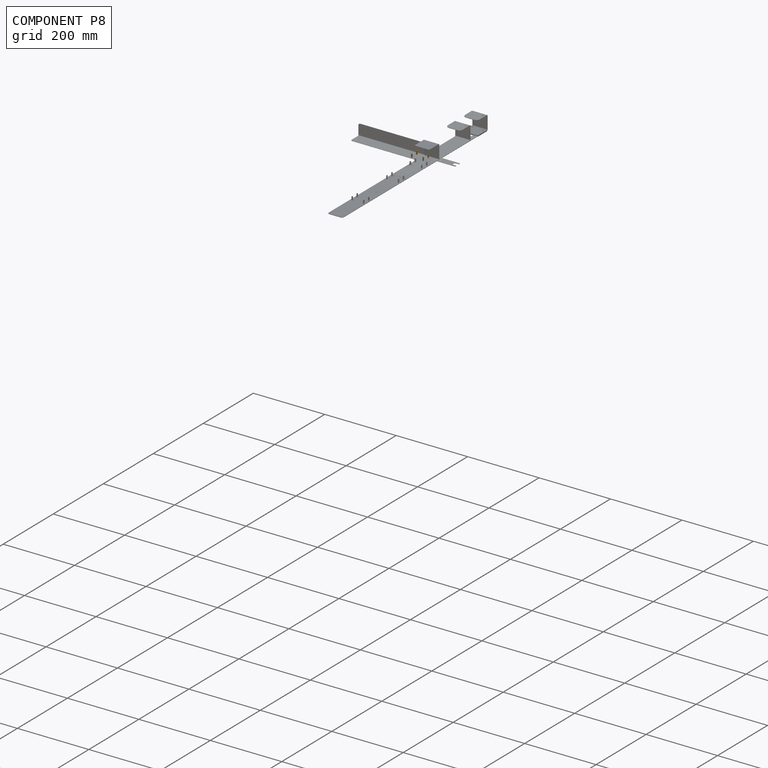
[diagram: component P8 — assembled]
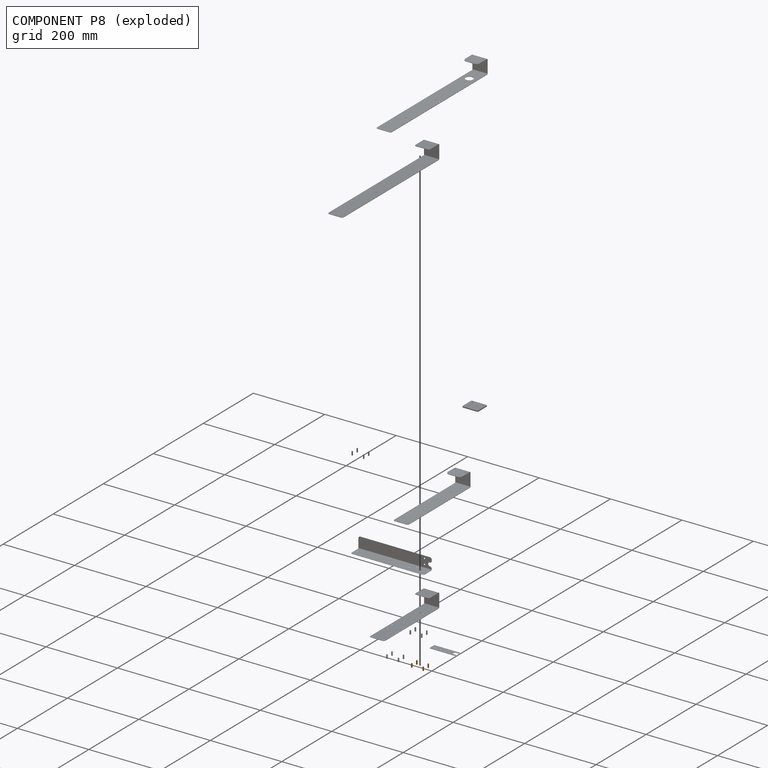
[diagram: component P8 — exploded]
COMPONENT P8 — geometry summary ("Populate Populate LinearArray003 with LinearArray001 with hole_3.5_mm002"; no construction recipe available for this part):
  bounding box: 35.5 x 23.5 x 10.0 mm
  tessellated surface: 816 triangles
  volume: 385 mm^3 (5% of its bounding box)
  symmetry: 2-fold rotationally symmetric about the x axis
Held by: resting contact with P2 (derived edge); resting contact with P4 (derived edge); resting contact with P6 (derived edge).
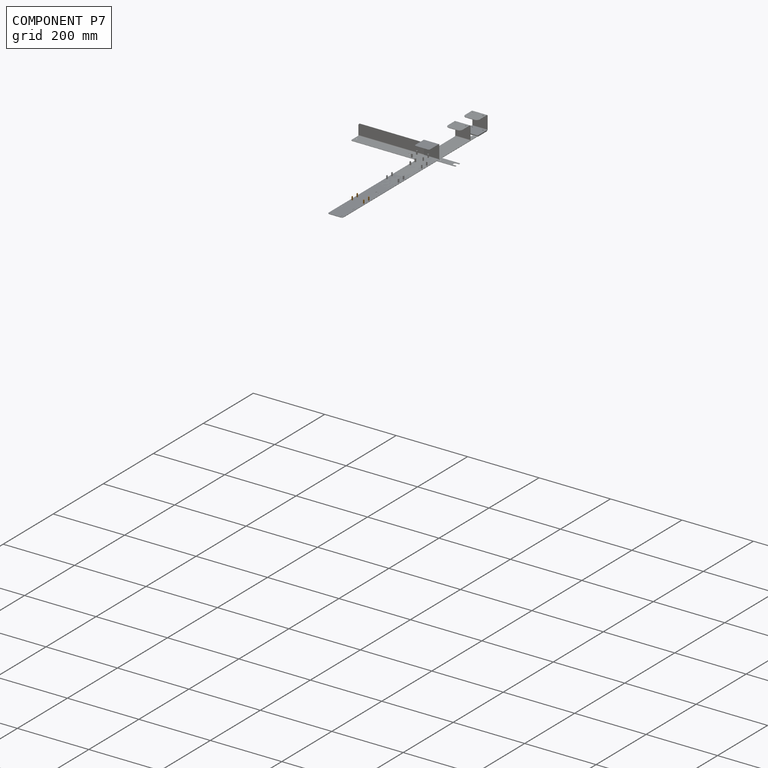
[diagram: component P7 — assembled]
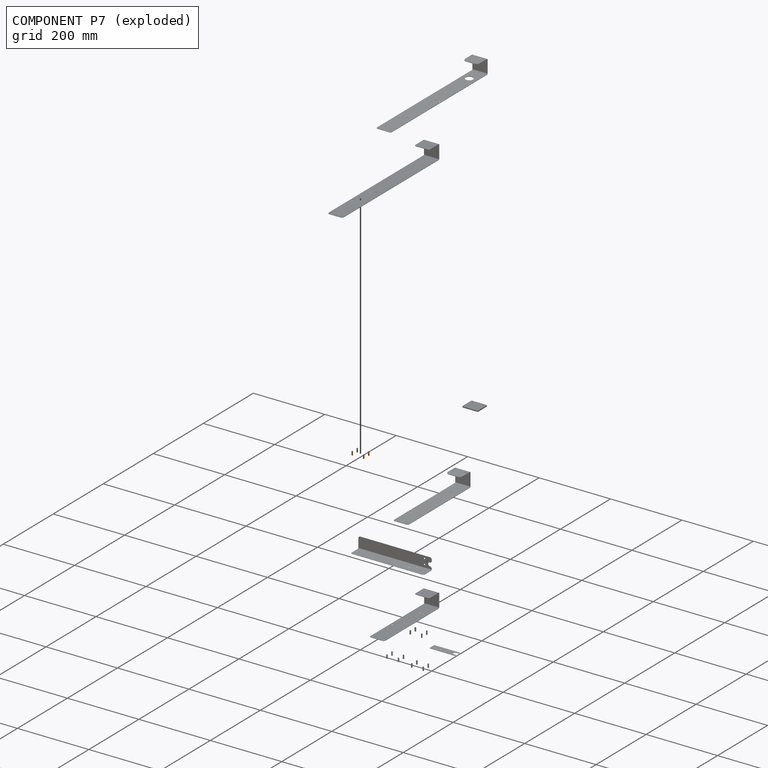
[diagram: component P7 — exploded]
COMPONENT P7 — geometry summary ("Populate Populate LinearArray003 with LinearArray001 with hole_3.5_mm001"; no construction recipe available for this part):
  bounding box: 35.5 x 23.5 x 10.0 mm
  tessellated surface: 816 triangles
  volume: 385 mm^3 (5% of its bounding box)
  symmetry: 2-fold rotationally symmetric about the x axis
Held by: resting contact with P3 (derived edge).
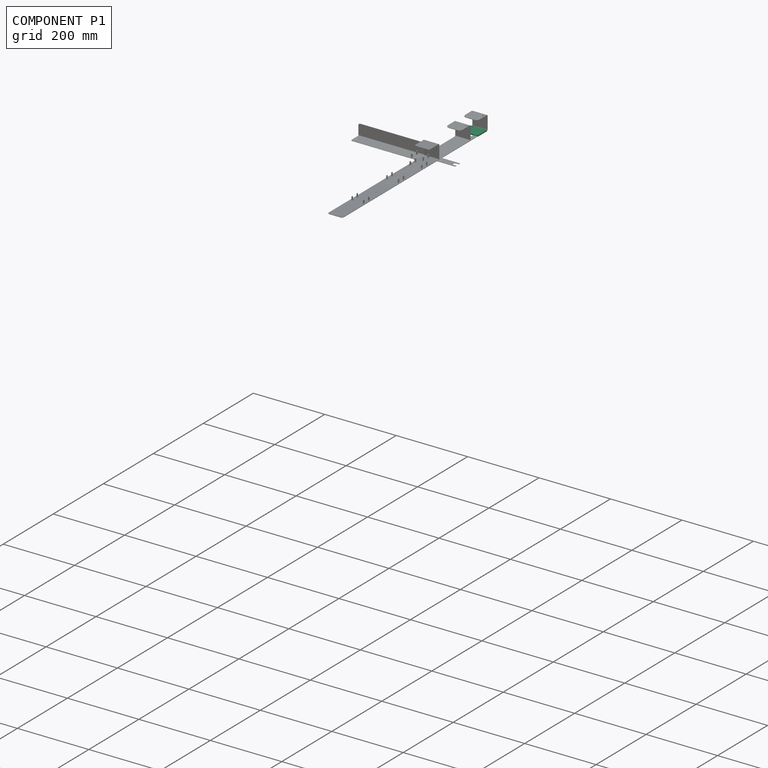
[diagram: component P1 — assembled]
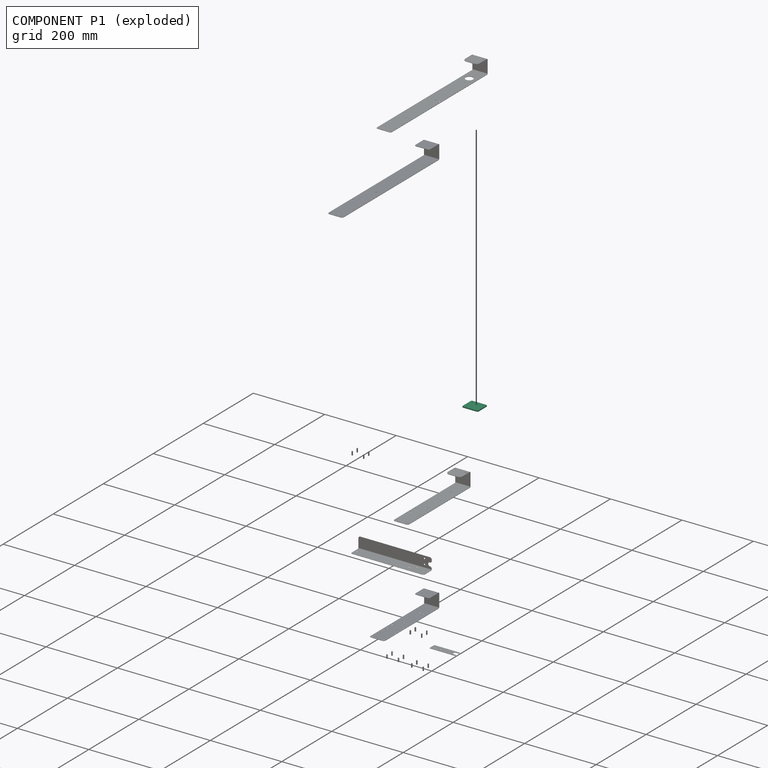
[diagram: component P1 — exploded]
COMPONENT P1 — recipe-attached ("Body001", modeled in this document).
Held by: resting contact with P0 (derived edge).
Construction recipe (the document's own serialized feature program — sketch geometry with constraints, then the solid features built on it; lengths are millimeters unless a unit is written):

FEATURE [PartDesign::SubShapeBinder] Binder001
  BindCopyOnChange = 0
  BindMode = 0
  ClaimChildren = false
  Context = -> Body001 [Binder001.]
  Fuse = false
  MakeFace = true
  OffsetFill = false
  OffsetIntersection = false
  OffsetJoinType = 0
  OffsetOpenResult = false
  PartialLoad = false
  Relative = true
  Support = -> [Body[BaseBend.Sketch.]]
  _Version = 2
FEATURE [Sketcher::SketchObject] Sketch006
  AttachmentSupport = -> [XY_Plane001]
  ExternalGeometry = -> [Binder001]
  FullyConstrained = true
  MapMode = 5
  sketch-geometry (13):
    g0: LineSegment StartX=-22 StartY=155 StartZ=0 EndX=-22 EndY=188 EndZ=0
    g1: LineSegment StartX=-19.5 StartY=190.5 StartZ=0 EndX=19.5 EndY=190.5 EndZ=0
    g2: LineSegment StartX=22 StartY=188 StartZ=0 EndX=22 EndY=155 EndZ=0
    g3: LineSegment StartX=19.5 StartY=152.5 StartZ=0 EndX=-19.5 EndY=152.5 EndZ=0
    g4: GeomPoint X=0 Y=171.5 Z=0
    g5: ArcOfCircle CenterX=19.5 CenterY=188 CenterZ=0 NormalX=0 NormalY=0 NormalZ=1 AngleXU=0 Radius=2.5 StartAngle=-3.6e-15 EndAngle=1.5708
    g6: GeomPoint X=22 Y=190.5 Z=0
    g7: ArcOfCircle CenterX=19.5 CenterY=155 CenterZ=0 NormalX=0 NormalY=0 NormalZ=1 AngleXU=0 Radius=2.5 StartAngle=4.71239 EndAngle=6.28319
    g8: GeomPoint X=22 Y=152.5 Z=0
    g9: ArcOfCircle CenterX=-19.5 CenterY=155 CenterZ=0 NormalX=0 NormalY=0 NormalZ=1 AngleXU=0 Radius=2.5 StartAngle=3.14159 EndAngle=4.71239
    g10: GeomPoint X=-22 Y=152.5 Z=0
    g11: ArcOfCircle CenterX=-19.5 CenterY=188 CenterZ=0 NormalX=0 NormalY=0 NormalZ=1 AngleXU=0 Radius=2.5 StartAngle=1.5708 EndAngle=3.14159
    g12: GeomPoint X=-22 Y=190.5 Z=0
  constraints (29):
    c: Horizontal(g1)
    c: Horizontal(g3)
    c: Vertical(g0)
    c: Vertical(g2)
    c: Symmetric(g6,g10,g4)
    c: PointOnObject(g4,g-3)
    c: Distance(g-3,g3) = 1
    c: DistanceX(g10,g8) = 44
    c: Distance(g-3,g1) = 3
    c: PointOnObject(g6,g1)
    c: PointOnObject(g6,g2)
    c: Tangent(g1,g5) = 1.5708
    c: Tangent(g2,g5) = 1.5708
    c: PointOnObject(g8,g3)
    c: PointOnObject(g8,g2)
    c: Tangent(g3,g7) = 1.5708
    c: Tangent(g2,g7) = 1.5708
    c: PointOnObject(g10,g3)
    c: PointOnObject(g10,g0)
    c: Tangent(g3,g9) = 1.5708
    c: Tangent(g0,g9) = 1.5708
    c: PointOnObject(g12,g0)
    c: PointOnObject(g12,g1)
    c: Tangent(g0,g11) = 1.5708
    c: Tangent(g1,g11) = 1.5708
    c: Equal(g9,g7)
    c: Equal(g9,g11)
    c: Equal(g9,g5)
    c: Diameter(g9) = 5
FEATURE [PartDesign::Pad] Pad
  Direction = (0,0,1)
  Length = 3
  Length2 = 10
  Profile = -> Sketch006
  ReferenceAxis = -> Sketch006 [N_Axis]
  Suppressed = false
  Type = 0
FEATURE [PartDesign::SubShapeBinder] Binder002
  BindCopyOnChange = 0
  BindMode = 0
  ClaimChildren = false
  Context = -> Body001 [Binder002.]
  Fuse = false
  MakeFace = true
  OffsetFill = false
  OffsetIntersection = false
  OffsetJoinType = 0
  OffsetOpenResult = false
  PartialLoad = false
  Relative = true
  Support = -> [Body[Hole003.Sketch005.]]
  _Version = 2
FEATURE [PartDesign::Pocket] Pocket
  BaseFeature = -> Pad
  Direction = (0,0,-1)
  Length = 5
  Length2 = 5
  Midplane = true
  Profile = -> Binder002
  Suppressed = false
  Type = 1
FEATURE [PartDesign::Body] Body001
  Group = -> [Binder001,Sketch006,Pad,Binder002,Pocket]
  Origin = -> Origin001
  Tip = -> Pocket
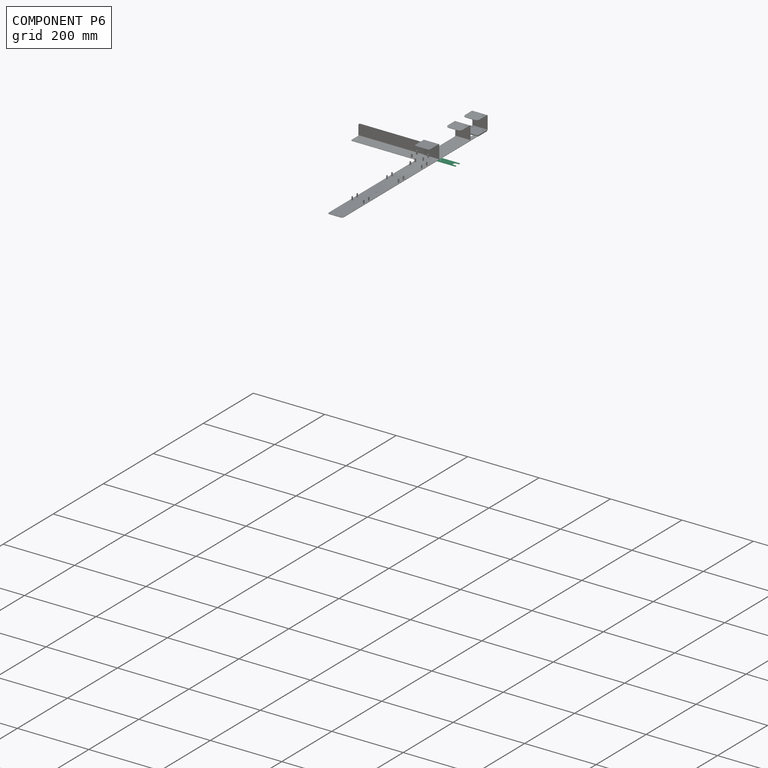
[diagram: component P6 — assembled]
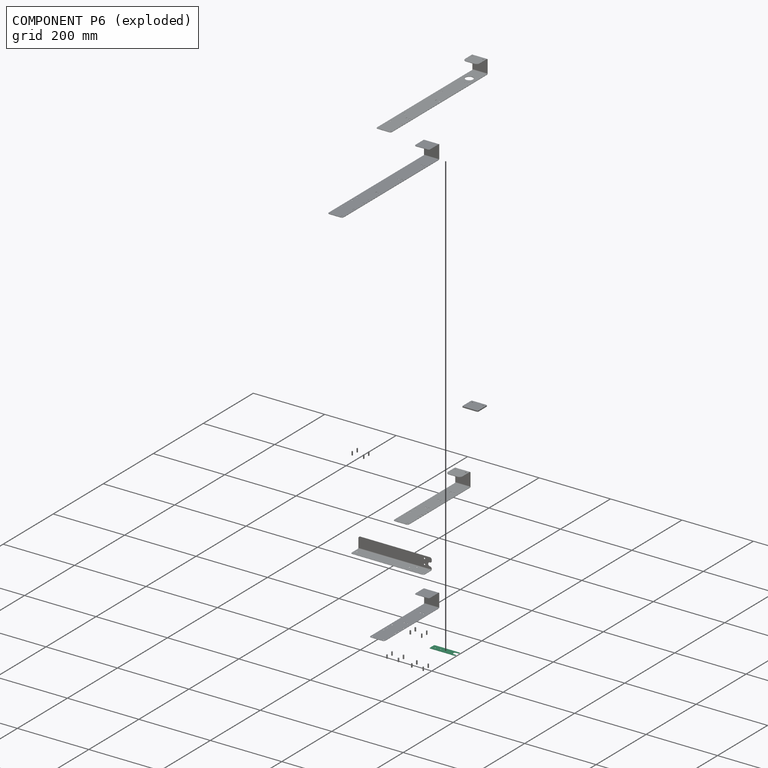
[diagram: component P6 — exploded]
COMPONENT P6 — recipe-attached ("Body007", modeled in this document).
Held by: resting contact with P0 (derived edge); resting contact with P2 (derived edge); resting contact with P3 (derived edge); resting contact with P4 (derived edge); resting contact with P5 (derived edge); resting contact with P8 (derived edge).
Construction recipe (the document's own serialized feature program — sketch geometry with constraints, then the solid features built on it; lengths are millimeters unless a unit is written):

FEATURE [PartDesign::SubShapeBinder] Binder008
  BindCopyOnChange = 0
  BindMode = 0
  ClaimChildren = true
  Context = -> Body007 [Binder008.]
  Fuse = false
  MakeFace = true
  OffsetFill = false
  OffsetIntersection = false
  OffsetJoinType = 0
  OffsetOpenResult = false
  PartialLoad = false
  Relative = false
  Support = -> [Connect]
  _Version = 2
FEATURE [PartDesign::Pad] Pad001
  Direction = (0,0,1)
  Length = 0.7
  Length2 = 10
  Profile = -> Binder008
  Suppressed = false
  Type = 0
FEATURE [PartDesign::Boolean] Boolean004
  BaseFeature = -> Pad001
  Group = -> [Compound007]
  Suppressed = false
  Type = 1
  UsePlacement = true
FEATURE [PartDesign::Body] Body007
  Group = -> [Binder008,Pad001,Boolean004]
  Origin = -> Origin007
  Tip = -> Boolean004
PROVENANCE & LICENSES
Assembly and component geometry: a FreeCAD (.FCStd) document from a public repository crawl; components, placements and joints were extracted with FreeCAD and each solid tessellated.
Construction recipes: the document's own serialized feature recipes (and, for linked parts, the recipes of companion documents from the same project).
License: as declared in the source repository (recorded in the dataset sidecar).
Joints: native FreeCAD joints and A2plus constraints are mapped to standard mate types; edges marked 'derived from contact' connect touching components and are measured from the geometry, not modeled.
Verification: 7 of this assembly's 11 components carry a construction recipe (7 from this document itself); the rest are geometry-only. Every component's tessellation passed the extraction mesh gates (mesh-volume checksum against the B-rep where available, bounding-box inflation <= 2%).
Renders: orthographic iso camera (az 35 / el 25); the floor grid conveys scale (grid pitch printed in each image; no ruler). In the exploded view each component is displaced by its stored offset vector: the offsets alone carry the explosion direction (mate normal/axis signs are not orientation cues and do not encode it), and separation distances are assigned per mate-chain, not proportionally to assembly-order depth.
